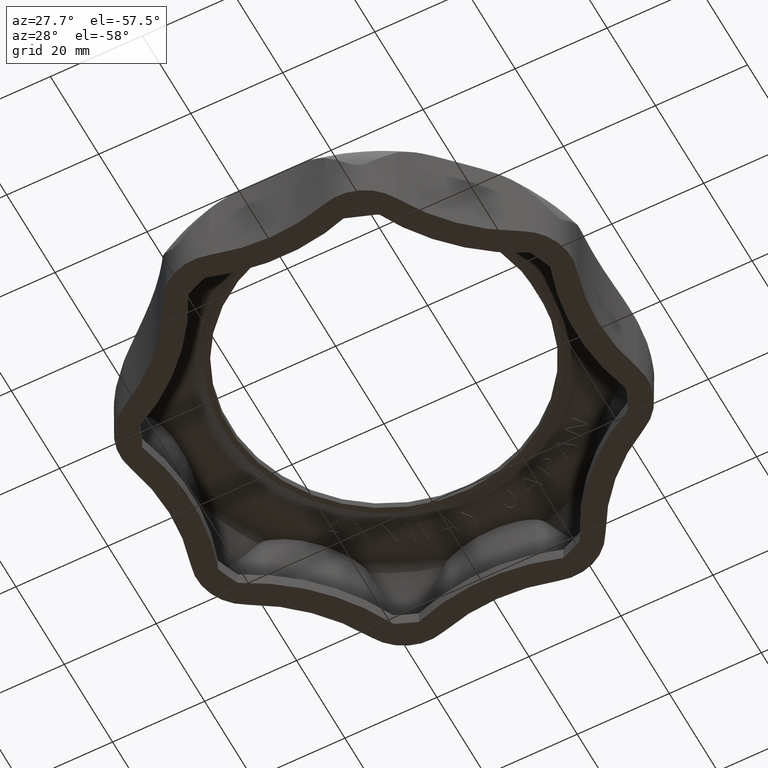
[diagram: clean part render]
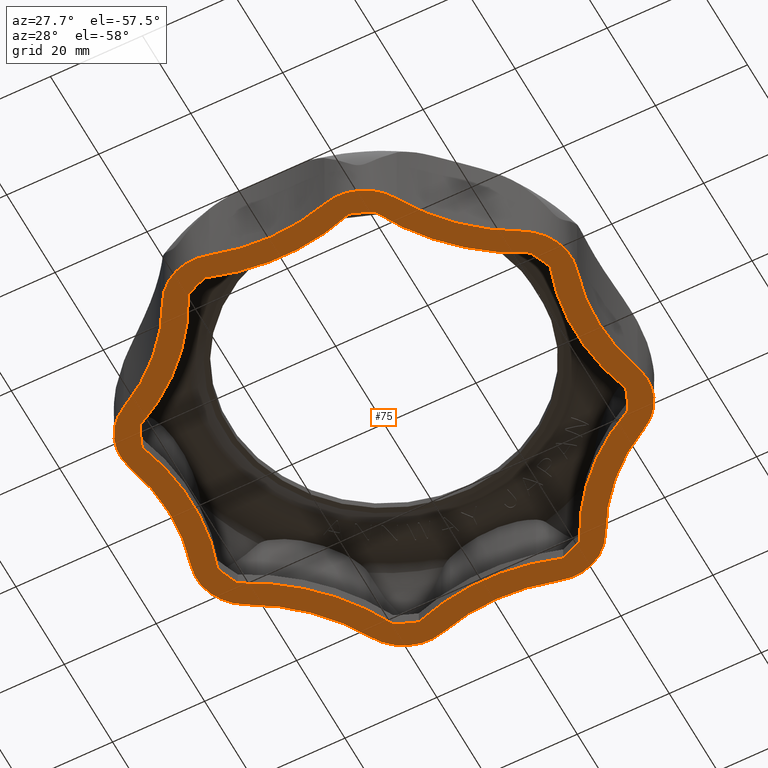
[diagram: same view with one face highlighted and labeled with its STEP entity id]
A machine part, auxiliary view. The second image highlights one B-rep face of the part: STEP entity #75.
In plain terms, the highlighted planar face has unit normal (-0, -0, 1).
Its self-contained STEP definition (entity closure, byte-faithful):
#75 = ADVANCED_FACE( '', ( #2325, #2326 ), #2327, .F. );
#2325 = FACE_OUTER_BOUND( '', #6857, .T. );
#2326 = FACE_BOUND( '', #6858, .T. );
#2327 = PLANE( '', #6859 );
#6857 = EDGE_LOOP( '', ( #11565, #11566, #11567, #11568, #11569, #11570, #11571, #11572, #11573, #11574, #11575, #11576, #11577, #11578, #11579, #11580 ) );
#6858 = EDGE_LOOP( '', ( #11581, #11582, #11583, #11584, #11585, #11586, #11587, #11588, #11589, #11590, #11591, #11592, #11593, #11594, #11595, #11596 ) );
#6859 = AXIS2_PLACEMENT_3D( '', #11597, #11598, #11599 );
#11565 = ORIENTED_EDGE( '', *, *, #31584, .F. );
#11566 = ORIENTED_EDGE( '', *, *, #31585, .F. );
#11567 = ORIENTED_EDGE( '', *, *, #31586, .F. );
#11568 = ORIENTED_EDGE( '', *, *, #31587, .F. );
#11569 = ORIENTED_EDGE( '', *, *, #31588, .F. );
#11570 = ORIENTED_EDGE( '', *, *, #31589, .F. );
#11571 = ORIENTED_EDGE( '', *, *, #31590, .F. );
#11572 = ORIENTED_EDGE( '', *, *, #31591, .F. );
#11573 = ORIENTED_EDGE( '', *, *, #31592, .F. );
#11574 = ORIENTED_EDGE( '', *, *, #31593, .F. );
#11575 = ORIENTED_EDGE( '', *, *, #31594, .F. );
#11576 = ORIENTED_EDGE( '', *, *, #31595, .F. );
#11577 = ORIENTED_EDGE( '', *, *, #31596, .F. );
#11578 = ORIENTED_EDGE( '', *, *, #31597, .F. );
#11579 = ORIENTED_EDGE( '', *, *, #31598, .F. );
#11580 = ORIENTED_EDGE( '', *, *, #31599, .F. );
#11581 = ORIENTED_EDGE( '', *, *, #31600, .F. );
#11582 = ORIENTED_EDGE( '', *, *, #31601, .F. );
#11583 = ORIENTED_EDGE( '', *, *, #31602, .F. );
#11584 = ORIENTED_EDGE( '', *, *, #31603, .F. );
#11585 = ORIENTED_EDGE( '', *, *, #31604, .F. );
#11586 = ORIENTED_EDGE( '', *, *, #31605, .F. );
#11587 = ORIENTED_EDGE( '', *, *, #31606, .F. );
#11588 = ORIENTED_EDGE( '', *, *, #31607, .F. );
#11589 = ORIENTED_EDGE( '', *, *, #31608, .F. );
#11590 = ORIENTED_EDGE( '', *, *, #31609, .F. );
#11591 = ORIENTED_EDGE( '', *, *, #31610, .F. );
#11592 = ORIENTED_EDGE( '', *, *, #31611, .F. );
#11593 = ORIENTED_EDGE( '', *, *, #31612, .F. );
#11594 = ORIENTED_EDGE( '', *, *, #31613, .F. );
#11595 = ORIENTED_EDGE( '', *, *, #31614, .F. );
#11596 = ORIENTED_EDGE( '', *, *, #31615, .F. );
#11597 = CARTESIAN_POINT( '', ( 0.000000000000000, 0.000000000000000, -0.000342076785297268 ) );
#11598 = DIRECTION( '', ( -3.31376091451462E-017, -8.00012654228307E-017, 1.00000000000000 ) );
#11599 = DIRECTION( '', ( 0.923879532511287, 0.382683432365090, 6.12303176911189E-017 ) );
#31584 = EDGE_CURVE( '', #38232, #38233, #38234, .T. );
#31585 = EDGE_CURVE( '', #38235, #38232, #38236, .F. );
#31586 = EDGE_CURVE( '', #38237, #38235, #38238, .T. );
#31587 = EDGE_CURVE( '', #38239, #38237, #38240, .F. );
#31588 = EDGE_CURVE( '', #38241, #38239, #38242, .T. );
#31589 = EDGE_CURVE( '', #38243, #38241, #38244, .F. );
#31590 = EDGE_CURVE( '', #38245, #38243, #38246, .T. );
#31591 = EDGE_CURVE( '', #38247, #38245, #38248, .F. );
#31592 = EDGE_CURVE( '', #38249, #38247, #38250, .T. );
#31593 = EDGE_CURVE( '', #38251, #38249, #38252, .F. );
#31594 = EDGE_CURVE( '', #38253, #38251, #38254, .T. );
#31595 = EDGE_CURVE( '', #38255, #38253, #38256, .F. );
#31596 = EDGE_CURVE( '', #38257, #38255, #38258, .T. );
#31597 = EDGE_CURVE( '', #38259, #38257, #38260, .F. );
#31598 = EDGE_CURVE( '', #38261, #38259, #38262, .T. );
#31599 = EDGE_CURVE( '', #38233, #38261, #38263, .F. );
#31600 = EDGE_CURVE( '', #38264, #38265, #38266, .T. );
#31601 = EDGE_CURVE( '', #38267, #38264, #38268, .T. );
#31602 = EDGE_CURVE( '', #38269, #38267, #38270, .T. );
#31603 = EDGE_CURVE( '', #38271, #38269, #38272, .T. );
#31604 = EDGE_CURVE( '', #38273, #38271, #38274, .T. );
#31605 = EDGE_CURVE( '', #38275, #38273, #38276, .T. );
#31606 = EDGE_CURVE( '', #38277, #38275, #38278, .T. );
#31607 = EDGE_CURVE( '', #38279, #38277, #38280, .T. );
#31608 = EDGE_CURVE( '', #38281, #38279, #38282, .T. );
#31609 = EDGE_CURVE( '', #38283, #38281, #38284, .T. );
#31610 = EDGE_CURVE( '', #38285, #38283, #38286, .T. );
#31611 = EDGE_CURVE( '', #38287, #38285, #38288, .T. );
#31612 = EDGE_CURVE( '', #38289, #38287, #38290, .T. );
#31613 = EDGE_CURVE( '', #38291, #38289, #38292, .T. );
#31614 = EDGE_CURVE( '', #38293, #38291, #38294, .T. );
#31615 = EDGE_CURVE( '', #38265, #38293, #38295, .T. );
#38232 = VERTEX_POINT( '', #49313 );
#38233 = VERTEX_POINT( '', #49314 );
#38234 = CIRCLE( '', #49315, 11.0000000000000 );
#38235 = VERTEX_POINT( '', #49316 );
#38236 = CIRCLE( '', #49317, 42.5000000000000 );
#38237 = VERTEX_POINT( '', #49318 );
#38238 = CIRCLE( '', #49319, 11.0000000000000 );
#38239 = VERTEX_POINT( '', #49320 );
#38240 = CIRCLE( '', #49321, 42.5000000000000 );
#38241 = VERTEX_POINT( '', #49322 );
#38242 = CIRCLE( '', #49323, 11.0000000000000 );
#38243 = VERTEX_POINT( '', #49324 );
#38244 = CIRCLE( '', #49325, 42.5000000000000 );
#38245 = VERTEX_POINT( '', #49326 );
#38246 = CIRCLE( '', #49327, 11.0000000000000 );
#38247 = VERTEX_POINT( '', #49328 );
#38248 = CIRCLE( '', #49329, 42.5000000000000 );
#38249 = VERTEX_POINT( '', #49330 );
#38250 = CIRCLE( '', #49331, 11.0000000000000 );
#38251 = VERTEX_POINT( '', #49332 );
#38252 = CIRCLE( '', #49333, 42.5000000000000 );
#38253 = VERTEX_POINT( '', #49334 );
#38254 = CIRCLE( '', #49335, 11.0000000000000 );
#38255 = VERTEX_POINT( '', #49336 );
#38256 = CIRCLE( '', #49337, 42.5000000000000 );
#38257 = VERTEX_POINT( '', #49338 );
#38258 = CIRCLE( '', #49339, 11.0000000000000 );
#38259 = VERTEX_POINT( '', #49340 );
#38260 = CIRCLE( '', #49341, 42.5000000000000 );
#38261 = VERTEX_POINT( '', #49342 );
#38262 = CIRCLE( '', #49343, 11.0000000000000 );
#38263 = CIRCLE( '', #49344, 42.5000000000000 );
#38264 = VERTEX_POINT( '', #49345 );
#38265 = VERTEX_POINT( '', #49346 );
#38266 = CIRCLE( '', #49347, 47.0000000000000 );
#38267 = VERTEX_POINT( '', #49348 );
#38268 = CIRCLE( '', #49349, 47.5000000000000 );
#38269 = VERTEX_POINT( '', #49350 );
#38270 = CIRCLE( '', #49351, 47.0000000000000 );
#38271 = VERTEX_POINT( '', #49352 );
#38272 = CIRCLE( '', #49353, 47.5000000000000 );
#38273 = VERTEX_POINT( '', #49354 );
#38274 = CIRCLE( '', #49355, 47.0000000000000 );
#38275 = VERTEX_POINT( '', #49356 );
#38276 = CIRCLE( '', #49357, 47.5000000000000 );
#38277 = VERTEX_POINT( '', #49358 );
#38278 = CIRCLE( '', #49359, 47.0000000000000 );
#38279 = VERTEX_POINT( '', #49360 );
#38280 = CIRCLE( '', #49361, 47.5000000000000 );
#38281 = VERTEX_POINT( '', #49362 );
#38282 = CIRCLE( '', #49363, 47.0000000000000 );
#38283 = VERTEX_POINT( '', #49364 );
#38284 = CIRCLE( '', #49365, 47.5000000000000 );
#38285 = VERTEX_POINT( '', #49366 );
#38286 = CIRCLE( '', #49367, 47.0000000000000 );
#38287 = VERTEX_POINT( '', #49368 );
#38288 = CIRCLE( '', #49369, 47.5000000000000 );
#38289 = VERTEX_POINT( '', #49370 );
#38290 = CIRCLE( '', #49371, 47.0000000000000 );
#38291 = VERTEX_POINT( '', #49372 );
#38292 = CIRCLE( '', #49373, 47.5000000000000 );
#38293 = VERTEX_POINT( '', #49374 );
#38294 = CIRCLE( '', #49375, 47.0000000000000 );
#38295 = CIRCLE( '', #49376, 47.5000000000000 );
#49313 = CARTESIAN_POINT( '', ( 48.5330571801669, 12.5105546196676, -0.000342076785356249 ) );
#49314 = CARTESIAN_POINT( '', ( 43.1643518517822, 25.4717558358388, -0.000342076785297268 ) );
#49315 = AXIS2_PLACEMENT_3D( '', #77666, #77667, #77668 );
#49316 = CARTESIAN_POINT( '', ( 48.5330571083392, -12.5105546425721, -0.000342076785297268 ) );
#49317 = AXIS2_PLACEMENT_3D( '', #77669, #77670, #77671 );
#49318 = CARTESIAN_POINT( '', ( 43.1643518171882, -25.4717557688532, -0.000342076785297268 ) );
#49319 = AXIS2_PLACEMENT_3D( '', #77672, #77673, #77674 );
#49320 = CARTESIAN_POINT( '', ( 25.4717558358389, -43.1643518517824, -0.000342076785297268 ) );
#49321 = AXIS2_PLACEMENT_3D( '', #77675, #77676, #77677 );
#49322 = CARTESIAN_POINT( '', ( 12.5105546196679, -48.5330571801671, -0.000342076785297268 ) );
#49323 = AXIS2_PLACEMENT_3D( '', #77678, #77679, #77680 );
#49324 = CARTESIAN_POINT( '', ( -12.5105546425721, -48.5330571083393, -0.000342076785297268 ) );
#49325 = AXIS2_PLACEMENT_3D( '', #77681, #77682, #77683 );
#49326 = CARTESIAN_POINT( '', ( -25.4717557688530, -43.1643518171882, -0.000342076785297268 ) );
#49327 = AXIS2_PLACEMENT_3D( '', #77684, #77685, #77686 );
#49328 = CARTESIAN_POINT( '', ( -43.1643518517822, -25.4717558358389, -0.000342076785297268 ) );
#49329 = AXIS2_PLACEMENT_3D( '', #77687, #77688, #77689 );
#49330 = CARTESIAN_POINT( '', ( -48.5330571801671, -12.5105546196677, -0.000342076785297268 ) );
#49331 = AXIS2_PLACEMENT_3D( '', #77690, #77691, #77692 );
#49332 = CARTESIAN_POINT( '', ( -48.5330571083393, 12.5105546425720, -0.000342076785297268 ) );
#49333 = AXIS2_PLACEMENT_3D( '', #77693, #77694, #77695 );
#49334 = CARTESIAN_POINT( '', ( -43.1643518171883, 25.4717557688530, -0.000342076785297268 ) );
#49335 = AXIS2_PLACEMENT_3D( '', #77696, #77697, #77698 );
#49336 = CARTESIAN_POINT( '', ( -25.4717558358390, 43.1643518517826, -0.000342076785297268 ) );
#49337 = AXIS2_PLACEMENT_3D( '', #77699, #77700, #77701 );
#49338 = CARTESIAN_POINT( '', ( -12.5105546196678, 48.5330571801674, -0.000342076785297268 ) );
#49339 = AXIS2_PLACEMENT_3D( '', #77702, #77703, #77704 );
#49340 = CARTESIAN_POINT( '', ( 12.5105546425720, 48.5330571083392, -0.000342076785297268 ) );
#49341 = AXIS2_PLACEMENT_3D( '', #77705, #77706, #77707 );
#49342 = CARTESIAN_POINT( '', ( 25.4717557688529, 43.1643518171886, -0.000342076785297268 ) );
#49343 = AXIS2_PLACEMENT_3D( '', #77708, #77709, #77710 );
#49344 = AXIS2_PLACEMENT_3D( '', #77711, #77712, #77713 );
#49345 = CARTESIAN_POINT( '', ( -20.2498382271273, 42.4139605763854, -0.000342076785297268 ) );
#49346 = CARTESIAN_POINT( '', ( -15.6724012122085, 44.3099970688734, -0.000342076785297268 ) );
#49347 = AXIS2_PLACEMENT_3D( '', #77714, #77715, #77716 );
#49348 = CARTESIAN_POINT( '', ( -42.4139606345572, 20.2498381052849, -0.000342076785297268 ) );
#49349 = AXIS2_PLACEMENT_3D( '', #77717, #77718, #77719 );
#49350 = CARTESIAN_POINT( '', ( -44.3099970238511, 15.6724013394981, -0.000342076785297268 ) );
#49351 = AXIS2_PLACEMENT_3D( '', #77720, #77721, #77722 );
#49352 = CARTESIAN_POINT( '', ( -44.3099970688733, -15.6724012122085, -0.000342076785297268 ) );
#49353 = AXIS2_PLACEMENT_3D( '', #77723, #77724, #77725 );
#49354 = CARTESIAN_POINT( '', ( -42.4139605763853, -20.2498382271275, -0.000342076785297268 ) );
#49355 = AXIS2_PLACEMENT_3D( '', #77726, #77727, #77728 );
#49356 = CARTESIAN_POINT( '', ( -20.2498381052846, -42.4139606345571, -0.000342076785297268 ) );
#49357 = AXIS2_PLACEMENT_3D( '', #77729, #77730, #77731 );
#49358 = CARTESIAN_POINT( '', ( -15.6724013394980, -44.3099970238512, -0.000342076785297268 ) );
#49359 = AXIS2_PLACEMENT_3D( '', #77732, #77733, #77734 );
#49360 = CARTESIAN_POINT( '', ( 15.6724012122085, -44.3099970688734, -0.000342076785297268 ) );
#49361 = AXIS2_PLACEMENT_3D( '', #77735, #77736, #77737 );
#49362 = CARTESIAN_POINT( '', ( 20.2498382271275, -42.4139605763853, -0.000342076785297268 ) );
#49363 = AXIS2_PLACEMENT_3D( '', #77738, #77739, #77740 );
#49364 = CARTESIAN_POINT( '', ( 42.4139606345571, -20.2498381052847, -0.000342076785297268 ) );
#49365 = AXIS2_PLACEMENT_3D( '', #77741, #77742, #77743 );
#49366 = CARTESIAN_POINT( '', ( 44.3099970238514, -15.6724013394979, -0.000342076785297268 ) );
#49367 = AXIS2_PLACEMENT_3D( '', #77744, #77745, #77746 );
#49368 = CARTESIAN_POINT( '', ( 44.3099970688734, 15.6724012122085, -0.000342076785297268 ) );
#49369 = AXIS2_PLACEMENT_3D( '', #77747, #77748, #77749 );
#49370 = CARTESIAN_POINT( '', ( 42.4139605763853, 20.2498382271275, -0.000342076785297268 ) );
#49371 = AXIS2_PLACEMENT_3D( '', #77750, #77751, #77752 );
#49372 = CARTESIAN_POINT( '', ( 20.2498381052849, 42.4139606345572, -0.000342076785297268 ) );
#49373 = AXIS2_PLACEMENT_3D( '', #77753, #77754, #77755 );
#49374 = CARTESIAN_POINT( '', ( 15.6724013394980, 44.3099970238514, -0.000342076785297268 ) );
#49375 = AXIS2_PLACEMENT_3D( '', #77756, #77757, #77758 );
#49376 = AXIS2_PLACEMENT_3D( '', #77759, #77760, #77761 );
#77666 = CARTESIAN_POINT( '', ( 38.0204367624887, 15.7485805543714, -0.000342076785297268 ) );
#77667 = DIRECTION( '', ( -3.31376091451462E-017, -8.00012654228307E-017, 1.00000000000000 ) );
#77668 = DIRECTION( '', ( 0.923879532511287, 0.382683432365090, 6.12303176911189E-017 ) );
#77669 = CARTESIAN_POINT( '', ( 89.1499997030151, -1.28050736680763E-007, -0.000342076785297268 ) );
#77670 = DIRECTION( '', ( -3.31376091451462E-017, -8.00012654228307E-017, 1.00000000000000 ) );
#77671 = DIRECTION( '', ( 0.923879532511287, 0.382683432365090, 6.12303176911189E-017 ) );
#77672 = CARTESIAN_POINT( '', ( 38.0204366720700, -15.7485805169187, -0.000342076785297268 ) );
#77673 = DIRECTION( '', ( -3.31376091451462E-017, -8.00012654228307E-017, 1.00000000000000 ) );
#77674 = DIRECTION( '', ( 0.923879532511287, 0.382683432365090, 6.12303176911189E-017 ) );
#77675 = CARTESIAN_POINT( '', ( 63.0385694233262, -63.0385692422351, -0.000342076785297268 ) );
#77676 = DIRECTION( '', ( -3.31376091451462E-017, -8.00012654228307E-017, 1.00000000000000 ) );
#77677 = DIRECTION( '', ( 0.923879532511287, 0.382683432365090, 6.12303176911189E-017 ) );
#77678 = CARTESIAN_POINT( '', ( 15.7485805543714, -38.0204367624887, -0.000342076785297268 ) );
#77679 = DIRECTION( '', ( -3.31376091451462E-017, -8.00012654228307E-017, 1.00000000000000 ) );
#77680 = DIRECTION( '', ( 0.923879532511287, 0.382683432365090, 6.12303176911189E-017 ) );
#77681 = CARTESIAN_POINT( '', ( -1.28050660352930E-007, -89.1499997030150, -0.000342076785297268 ) );
#77682 = DIRECTION( '', ( -3.31376091451462E-017, -8.00012654228307E-017, 1.00000000000000 ) );
#77683 = DIRECTION( '', ( 0.923879532511287, 0.382683432365090, 6.12303176911189E-017 ) );
#77684 = CARTESIAN_POINT( '', ( -15.7485805169189, -38.0204366720700, -0.000342076785297268 ) );
#77685 = DIRECTION( '', ( -3.31376091451462E-017, -8.00012654228307E-017, 1.00000000000000 ) );
#77686 = DIRECTION( '', ( 0.923879532511287, 0.382683432365090, 6.12303176911189E-017 ) );
#77687 = CARTESIAN_POINT( '', ( -63.0385692422351, -63.0385694233262, -0.000342076785297268 ) );
#77688 = DIRECTION( '', ( -3.31376091451462E-017, -8.00012654228307E-017, 1.00000000000000 ) );
#77689 = DIRECTION( '', ( 0.923879532511287, 0.382683432365090, 6.12303176911189E-017 ) );
#77690 = CARTESIAN_POINT( '', ( -38.0204367624887, -15.7485805543714, -0.000342076785297268 ) );
#77691 = DIRECTION( '', ( -3.31376091451462E-017, -8.00012654228307E-017, 1.00000000000000 ) );
#77692 = DIRECTION( '', ( 0.923879532511287, 0.382683432365090, 6.12303176911189E-017 ) );
#77693 = CARTESIAN_POINT( '', ( -89.1499997030150, 1.28050743619657E-007, -0.000342076785297268 ) );
#77694 = DIRECTION( '', ( -3.31376091451462E-017, -8.00012654228307E-017, 1.00000000000000 ) );
#77695 = DIRECTION( '', ( 0.923879532511287, 0.382683432365090, 6.12303176911189E-017 ) );
#77696 = CARTESIAN_POINT( '', ( -38.0204366720703, 15.7485805169192, -0.000342076785297268 ) );
#77697 = DIRECTION( '', ( -3.31376091451462E-017, -8.00012654228307E-017, 1.00000000000000 ) );
#77698 = DIRECTION( '', ( 0.923879532511287, 0.382683432365090, 6.12303176911189E-017 ) );
#77699 = CARTESIAN_POINT( '', ( -63.0385694233262, 63.0385692422351, -0.000342076785297268 ) );
#77700 = DIRECTION( '', ( -3.31376091451462E-017, -8.00012654228307E-017, 1.00000000000000 ) );
#77701 = DIRECTION( '', ( 0.923879532511287, 0.382683432365090, 6.12303176911189E-017 ) );
#77702 = CARTESIAN_POINT( '', ( -15.7485805543714, 38.0204367624887, -0.000342076785297268 ) );
#77703 = DIRECTION( '', ( -3.31376091451462E-017, -8.00012654228307E-017, 1.00000000000000 ) );
#77704 = DIRECTION( '', ( 0.923879532511287, 0.382683432365090, 6.12303176911189E-017 ) );
#77705 = CARTESIAN_POINT( '', ( 1.28050736680763E-007, 89.1499997030151, -0.000342076785297268 ) );
#77706 = DIRECTION( '', ( -3.31376091451462E-017, -8.00012654228307E-017, 1.00000000000000 ) );
#77707 = DIRECTION( '', ( 0.923879532511287, 0.382683432365090, 6.12303176911189E-017 ) );
#77708 = CARTESIAN_POINT( '', ( 15.7485805169188, 38.0204366720705, -0.000342076785297268 ) );
#77709 = DIRECTION( '', ( -3.31376091451462E-017, -8.00012654228307E-017, 1.00000000000000 ) );
#77710 = DIRECTION( '', ( 0.923879532511287, 0.382683432365090, 6.12303176911189E-017 ) );
#77711 = CARTESIAN_POINT( '', ( 63.0385692422351, 63.0385694233262, -0.000342076785297268 ) );
#77712 = DIRECTION( '', ( -3.31376091451462E-017, -8.00012654228307E-017, 1.00000000000000 ) );
#77713 = DIRECTION( '', ( 0.923879532511287, 0.382683432365090, 6.12303176911189E-017 ) );
#77714 = CARTESIAN_POINT( '', ( 0.000000000000000, 0.000000000000000, -0.000342076785297268 ) );
#77715 = DIRECTION( '', ( 0.000000000000000, 0.000000000000000, -1.00000000000000 ) );
#77716 = DIRECTION( '', ( -0.333455334831004, 0.942765898658168, 0.000000000000000 ) );
#77717 = CARTESIAN_POINT( '', ( -63.0385694233262, 63.0385692422351, -0.000342076785297268 ) );
#77718 = DIRECTION( '', ( 0.000000000000000, 0.000000000000000, 1.00000000000000 ) );
#77719 = DIRECTION( '', ( 0.451484579609200, -0.892278921848490, 0.000000000000000 ) );
#77720 = CARTESIAN_POINT( '', ( 0.000000000000000, 0.000000000000000, -0.000342076785297268 ) );
#77721 = DIRECTION( '', ( 0.000000000000000, 0.000000000000000, -1.00000000000000 ) );
#77722 = DIRECTION( '', ( -0.902424688494453, 0.430847631530787, 0.000000000000000 ) );
#77723 = CARTESIAN_POINT( '', ( -89.1499997030150, 1.28050743619657E-007, -0.000342076785297268 ) );
#77724 = DIRECTION( '', ( 0.000000000000000, 0.000000000000000, 1.00000000000000 ) );
#77725 = DIRECTION( '', ( 0.944000060842229, -0.329945275962345, 0.000000000000000 ) );
#77726 = CARTESIAN_POINT( '', ( 0.000000000000000, 0.000000000000000, -0.000342076785297268 ) );
#77727 = DIRECTION( '', ( 0.000000000000000, 0.000000000000000, -1.00000000000000 ) );
#77728 = DIRECTION( '', ( -0.942765898658168, -0.333455334831005, 0.000000000000000 ) );
#77729 = CARTESIAN_POINT( '', ( -63.0385692422351, -63.0385694233262, -0.000342076785297268 ) );
#77730 = DIRECTION( '', ( 0.000000000000000, 0.000000000000000, 1.00000000000000 ) );
#77731 = DIRECTION( '', ( 0.900815386515495, 0.434202302408612, 0.000000000000000 ) );
#77732 = CARTESIAN_POINT( '', ( 0.000000000000000, 0.000000000000000, -0.000342076785297268 ) );
#77733 = DIRECTION( '', ( 0.000000000000000, 0.000000000000000, -1.00000000000000 ) );
#77734 = DIRECTION( '', ( -0.430847631530786, -0.902424688494454, 0.000000000000000 ) );
#77735 = CARTESIAN_POINT( '', ( -1.28050743619657E-007, -89.1499997030150, -0.000342076785297268 ) );
#77736 = DIRECTION( '', ( 0.000000000000000, 0.000000000000000, 1.00000000000000 ) );
#77737 = DIRECTION( '', ( 0.329945275962345, 0.944000060842229, 0.000000000000000 ) );
#77738 = CARTESIAN_POINT( '', ( 0.000000000000000, 0.000000000000000, -0.000342076785297268 ) );
#77739 = DIRECTION( '', ( 0.000000000000000, 0.000000000000000, -1.00000000000000 ) );
#77740 = DIRECTION( '', ( 0.333455334831004, -0.942765898658168, 0.000000000000000 ) );
#77741 = CARTESIAN_POINT( '', ( 63.0385694233262, -63.0385692422351, -0.000342076785297268 ) );
#77742 = DIRECTION( '', ( 0.000000000000000, 0.000000000000000, 1.00000000000000 ) );
#77743 = DIRECTION( '', ( -0.451484579609199, 0.892278921848491, 0.000000000000000 ) );
#77744 = CARTESIAN_POINT( '', ( 0.000000000000000, 0.000000000000000, -0.000342076785297268 ) );
#77745 = DIRECTION( '', ( 0.000000000000000, 0.000000000000000, -1.00000000000000 ) );
#77746 = DIRECTION( '', ( 0.902424688494454, -0.430847631530786, 0.000000000000000 ) );
#77747 = CARTESIAN_POINT( '', ( 89.1499997030151, -1.28050736680763E-007, -0.000342076785297268 ) );
#77748 = DIRECTION( '', ( 0.000000000000000, 0.000000000000000, 1.00000000000000 ) );
#77749 = DIRECTION( '', ( -0.944000060842229, 0.329945275962346, 0.000000000000000 ) );
#77750 = CARTESIAN_POINT( '', ( 0.000000000000000, 0.000000000000000, -0.000342076785297268 ) );
#77751 = DIRECTION( '', ( 0.000000000000000, 0.000000000000000, -1.00000000000000 ) );
#77752 = DIRECTION( '', ( 0.942765898658168, 0.333455334831004, 0.000000000000000 ) );
#77753 = CARTESIAN_POINT( '', ( 63.0385692422351, 63.0385694233262, -0.000342076785297268 ) );
#77754 = DIRECTION( '', ( 0.000000000000000, 0.000000000000000, 1.00000000000000 ) );
#77755 = DIRECTION( '', ( -0.900815386515495, -0.434202302408612, 0.000000000000000 ) );
#77756 = CARTESIAN_POINT( '', ( 0.000000000000000, 0.000000000000000, -0.000342076785297268 ) );
#77757 = DIRECTION( '', ( 0.000000000000000, 0.000000000000000, -1.00000000000000 ) );
#77758 = DIRECTION( '', ( 0.430847631530786, 0.902424688494454, 0.000000000000000 ) );
#77759 = CARTESIAN_POINT( '', ( 1.28050736680763E-007, 89.1499997030151, -0.000342076785297268 ) );
#77760 = DIRECTION( '', ( 0.000000000000000, 0.000000000000000, 1.00000000000000 ) );
#77761 = DIRECTION( '', ( -0.329945275962347, -0.944000060842228, 0.000000000000000 ) );